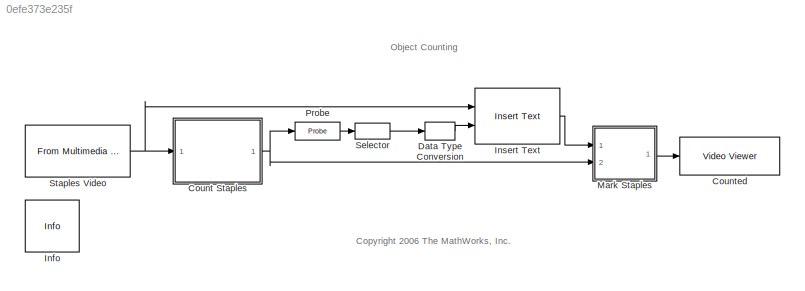
MODEL slx_0efe373e235f
KIND model
CONFIG AbsTol = auto
CONFIG FixedStep = auto
CONFIG MaxStep = auto
CONFIG MinStep = auto
CONFIG RelTol = 1e-3
CONFIG SampleTimeConstraint = Unconstrained
CONFIG Solver = FixedStepDiscrete
CONFIG SolverMode = Auto
CONFIG SolverName = FixedStepDiscrete
CONFIG StartTime = 0.0
CONFIG StopTime = inf
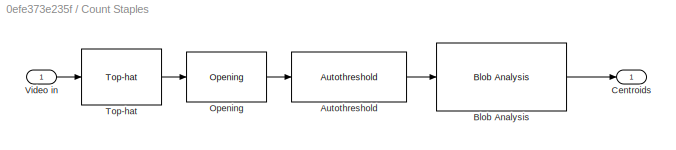
BLOCK [SubSystem] Count Staples
  Ports = [1, 1]
  RequestExecContextInheritance = off
  Variant = off
BLOCK [Reference] Count Staples/Autothreshold  REF=visionconversions/Autothreshold
  Ports = [1, 1]
  SourceBlock = visionconversions/Autothreshold
  SourceType = Autothreshold
BLOCK [Reference] Count Staples/Blob Analysis  REF=visionstatistics/Blob Analysis
  Ports = [1, 1]
  SourceBlock = visionstatistics/Blob Analysis
  SourceType = Blob Analysis
  Tag = vipblks_row_conv
BLOCK [Outport] Count Staples/Centroids
  IconDisplay = Port number
BLOCK [Reference] Count Staples/Opening  REF=visionmorphops/Opening
  Ports = [1, 1]
  SourceBlock = visionmorphops/Opening
  SourceType = Opening
BLOCK [Reference] Count Staples/Top-hat  REF=visionmorphops/Top-hat
  Ports = [1, 1]
  SourceBlock = visionmorphops/Top-hat
  SourceType = Top-hat
BLOCK [Inport] Count Staples/Video in
  IconDisplay = Port number
BLOCK [Reference] Counted  REF=visionsinks/Video Viewer
  Ports = [1]
  SourceBlock = visionsinks/Video Viewer
  SourceType = Video Viewer
  UserDataPersistent = on
BLOCK [DataTypeConversion] Data Type Conversion
  OutDataTypeStr = uint8
  RndMeth = Floor
  SaturateOnIntegerOverflow = off
BLOCK [Reference] Info  REF=vipmisc/Info
  Ports = []
  SourceBlock = vipmisc/Info
  SourceType = Info
BLOCK [Reference] Insert Text  REF=visiontextngfix/Insert Text
  Ports = [2, 1]
  SourceBlock = visiontextngfix/Insert Text
  SourceType = Insert Text
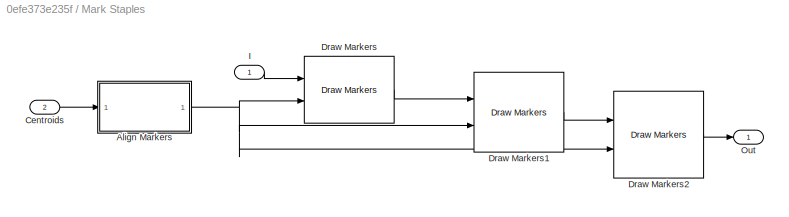
BLOCK [SubSystem] Mark Staples
  Ports = [2, 1]
  RequestExecContextInheritance = off
  Variant = off
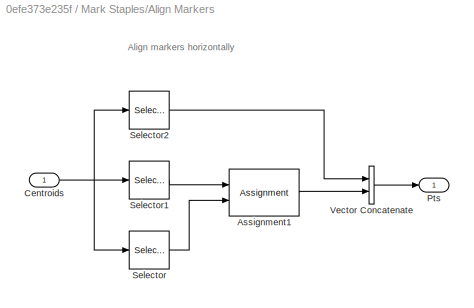
BLOCK [SubSystem] Mark Staples/Align Markers
  Ports = [1, 1]
  RequestExecContextInheritance = off
  Variant = off
BLOCK [Assignment] Mark Staples/Align Markers/Assignment1
  IndexOptions = Assign all
  Indices = 1
  OutputSizes = 1
  Ports = [2, 1]
BLOCK [Inport] Mark Staples/Align Markers/Centroids
  IconDisplay = Port number
BLOCK [Outport] Mark Staples/Align Markers/Pts
  IconDisplay = Port number
BLOCK [Selector] Mark Staples/Align Markers/Selector
  IndexOptions = Index vector (dialog),Index vector (dialog)
  Indices = 1,2
  InputPortWidth = 3
  NumberOfDimensions = 2
  OutputSizes = 1,1
  Ports = [1, 1]
BLOCK [Selector] Mark Staples/Align Markers/Selector1
  IndexOptions = Select all,Index vector (dialog)
  Indices = 1,2
  InputPortWidth = 3
  NumberOfDimensions = 2
  OutputSizes = 1,1
  Ports = [1, 1]
BLOCK [Selector] Mark Staples/Align Markers/Selector2
  IndexOptions = Select all,Index vector (dialog)
  Indices = 1,1
  InputPortWidth = 3
  NumberOfDimensions = 2
  OutputSizes = 1,1
  Ports = [1, 1]
BLOCK [Concatenate] Mark Staples/Align Markers/Vector Concatenate
  ConcatenateDimension = 2
  Mode = Multidimensional array
  Ports = [2, 1]
BLOCK [Inport] Mark Staples/Centroids
  IconDisplay = Port number
  Port = 2
BLOCK [Reference] Mark Staples/Draw Markers  REF=visiontextngfix/Draw Markers
  Ports = [2, 1]
  SourceBlock = visiontextngfix/Draw Markers
  SourceType = Draw Markers
BLOCK [Reference] Mark Staples/Draw Markers1  REF=visiontextngfix/Draw Markers
  Ports = [2, 1]
  SourceBlock = visiontextngfix/Draw Markers
  SourceType = Draw Markers
BLOCK [Reference] Mark Staples/Draw Markers2  REF=visiontextngfix/Draw Markers
  Ports = [2, 1]
  SourceBlock = visiontextngfix/Draw Markers
  SourceType = Draw Markers
BLOCK [Inport] Mark Staples/I
  IconDisplay = Port number
BLOCK [Outport] Mark Staples/Out
  IconDisplay = Port number
BLOCK [Probe] Probe
  Ports = [1, 1]
  ProbeComplexSignal = off
  ProbeSampleTime = off
  ProbeSignalDimensions = on
  ProbeWidth = off
  ProbeWidthDataType = uint8
BLOCK [Selector] Selector
  IndexOptions = Index vector (dialog),Index vector (dialog)
  Indices = 1,1
  InputPortWidth = 3
  NumberOfDimensions = 2
  OutputSizes = 99,1
  Ports = [1, 1]
BLOCK [Reference] Staples Video  REF=dspvision/From Multimedia File
  Ports = [0, 1]
  SourceBlock = dspvision/From Multimedia File
  SourceType = From Multimedia File
ANNOTATION (root): <copyright redacted>
ANNOTATION (root): Object Counting
ANNOTATION Mark Staples/Align Markers: Align markers horizontally
LINE Count Staples/Autothreshold:1 -> Count Staples/Blob Analysis:1
LINE Count Staples/Blob Analysis:1 -> Count Staples/Centroids:1
LINE Count Staples/Opening:1 -> Count Staples/Autothreshold:1
LINE Count Staples/Top-hat:1 -> Count Staples/Opening:1
LINE Count Staples/Video in:1 -> Count Staples/Top-hat:1
NET Count Staples:1 -> Mark Staples:2, Probe:1
LINE Data Type Conversion:1 -> Insert Text:2
LINE Insert Text:1 -> Mark Staples:1
LINE Mark Staples/Align Markers/Assignment1:1 -> Mark Staples/Align Markers/Vector Concatenate:2
NET Mark Staples/Align Markers/Centroids:1 -> Mark Staples/Align Markers/Selector1:1, Mark Staples/Align Markers/Selector2:1, Mark Staples/Align Markers/Selector:1
LINE Mark Staples/Align Markers/Selector1:1 -> Mark Staples/Align Markers/Assignment1:1
LINE Mark Staples/Align Markers/Selector2:1 -> Mark Staples/Align Markers/Vector Concatenate:1
LINE Mark Staples/Align Markers/Selector:1 -> Mark Staples/Align Markers/Assignment1:2
LINE Mark Staples/Align Markers/Vector Concatenate:1 -> Mark Staples/Align Markers/Pts:1
NET Mark Staples/Align Markers:1 -> Mark Staples/Draw Markers1:2, Mark Staples/Draw Markers2:2, Mark Staples/Draw Markers:2
LINE Mark Staples/Centroids:1 -> Mark Staples/Align Markers:1
LINE Mark Staples/Draw Markers1:1 -> Mark Staples/Draw Markers2:1
LINE Mark Staples/Draw Markers2:1 -> Mark Staples/Out:1
LINE Mark Staples/Draw Markers:1 -> Mark Staples/Draw Markers1:1
LINE Mark Staples/I:1 -> Mark Staples/Draw Markers:1
LINE Mark Staples:1 -> Counted:1
LINE Probe:1 -> Selector:1
LINE Selector:1 -> Data Type Conversion:1
NET Staples Video:1 -> Count Staples:1, Insert Text:1
note: NET lines group one-source signal fan-out (src -> all destinations, sorted); 1:1 wires keep LINE
